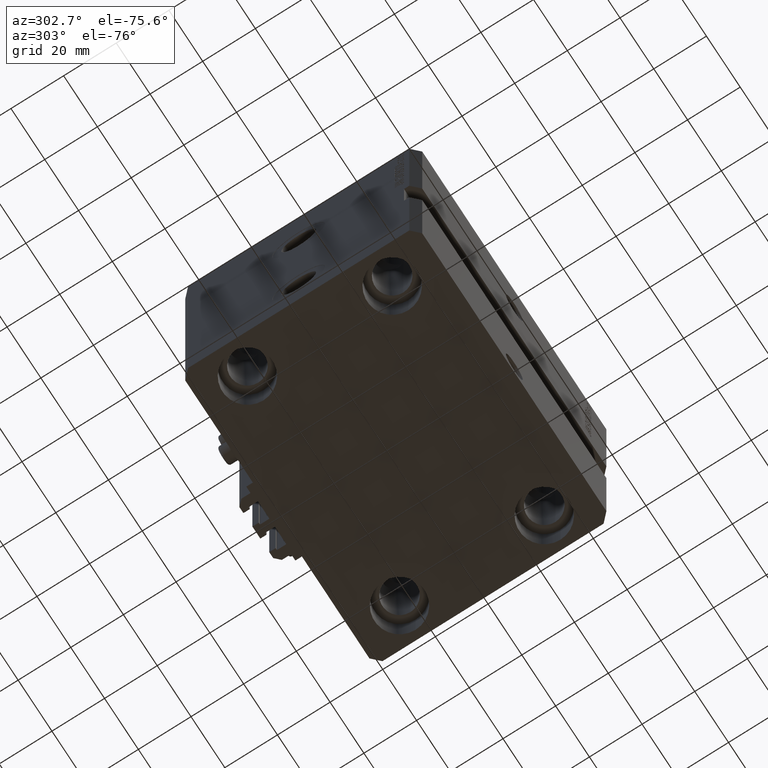
[diagram: clean part render]
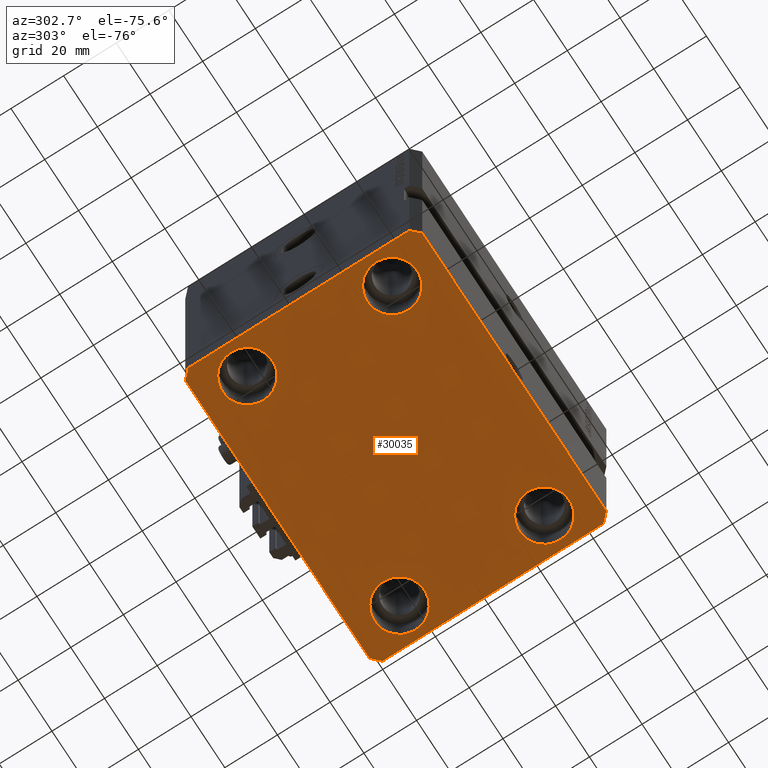
[diagram: same view with one face highlighted and labeled with its STEP entity id]
A machine part, auxiliary view. The second image highlights one B-rep face of the part: STEP entity #30035.
In plain terms, the highlighted planar face has unit normal (0, 0, 1).
Its self-contained STEP definition (entity closure, byte-faithful):
#116 = DIRECTION ( 'NONE',  ( 1.000000000000000000, 0.000000000000000000, -0.000000000000000000 ) ) ;
#152 = VECTOR ( 'NONE', #48277, 999.9999999999998863 ) ;
#198 = CIRCLE ( 'NONE', #24526, 9.500000000000001776 ) ;
#1672 = EDGE_CURVE ( 'NONE', #13714, #35282, #10608, .T. ) ;
#1809 = CIRCLE ( 'NONE', #30255, 9.500000000000001776 ) ;
#1853 = ORIENTED_EDGE ( 'NONE', *, *, #10540, .T. ) ;
#2529 = VECTOR ( 'NONE', #15275, 1000.000000000000114 ) ;
#3179 = CARTESIAN_POINT ( 'NONE',  ( 45.00000000000000000, 27.50000000000001776, -105.0000000000000000 ) ) ;
#3494 = CIRCLE ( 'NONE', #31912, 9.500000000000001776 ) ;
#3511 = LINE ( 'NONE', #26651, #35540 ) ;
#3606 = DIRECTION ( 'NONE',  ( -0.000000000000000000, -0.000000000000000000, 1.000000000000000000 ) ) ;
#3695 = PLANE ( 'NONE',  #30138 ) ;
#3943 = FACE_BOUND ( 'NONE', #33191, .T. ) ;
#3962 = EDGE_CURVE ( 'NONE', #24614, #7372, #30145, .T. ) ;
#4128 = DIRECTION ( 'NONE',  ( -2.478176394252581141E-16, -1.000000000000000000, 0.000000000000000000 ) ) ;
#4370 = EDGE_CURVE ( 'NONE', #12378, #45102, #41951, .T. ) ;
#5740 = AXIS2_PLACEMENT_3D ( 'NONE', #39337, #20018, #12614 ) ;
#5965 = EDGE_CURVE ( 'NONE', #35282, #21574, #29234, .T. ) ;
#6220 = ORIENTED_EDGE ( 'NONE', *, *, #3962, .T. ) ;
#6609 = CARTESIAN_POINT ( 'NONE',  ( 54.50000000000000000, 27.50000000000001776, -105.0000000000000000 ) ) ;
#7128 = EDGE_CURVE ( 'NONE', #48105, #13714, #17233, .T. ) ;
#7372 = VERTEX_POINT ( 'NONE', #23844 ) ;
#7528 = EDGE_CURVE ( 'NONE', #11069, #21249, #1809, .T. ) ;
#8066 = EDGE_CURVE ( 'NONE', #21249, #11069, #28517, .T. ) ;
#8297 = ORIENTED_EDGE ( 'NONE', *, *, #7528, .T. ) ;
#8319 = CARTESIAN_POINT ( 'NONE',  ( 35.50000000000000000, 27.50000000000001776, -105.0000000000000000 ) ) ;
#8425 = EDGE_LOOP ( 'NONE', ( #20188, #18148 ) ) ;
#9191 = CARTESIAN_POINT ( 'NONE',  ( -54.50000000000000000, 27.50000000000000355, -105.0000000000000000 ) ) ;
#9741 = CARTESIAN_POINT ( 'NONE',  ( 57.50000000000055422, 41.99999999999997868, -105.0000000000000000 ) ) ;
#9800 = CARTESIAN_POINT ( 'NONE',  ( -54.50000000000000000, -27.49999999999999645, -105.0000000000000000 ) ) ;
#10540 = EDGE_CURVE ( 'NONE', #7372, #24614, #198, .T. ) ;
#10608 = LINE ( 'NONE', #40605, #27595 ) ;
#11069 = VERTEX_POINT ( 'NONE', #6609 ) ;
#11092 = CARTESIAN_POINT ( 'NONE',  ( -35.50000000000000000, 27.50000000000000355, -105.0000000000000000 ) ) ;
#11198 = CARTESIAN_POINT ( 'NONE',  ( -57.50000000000000711, -42.00000000000000711, -105.0000000000000000 ) ) ;
#11551 = VECTOR ( 'NONE', #20799, 1000.000000000000000 ) ;
#11745 = CARTESIAN_POINT ( 'NONE',  ( -54.50000000000000711, -45.00000000000000000, -105.0000000000000000 ) ) ;
#11825 = DIRECTION ( 'NONE',  ( 1.000000000000000000, 0.000000000000000000, 0.000000000000000000 ) ) ;
#12378 = VERTEX_POINT ( 'NONE', #21836 ) ;
#12614 = DIRECTION ( 'NONE',  ( 1.000000000000000000, 0.000000000000000000, 0.000000000000000000 ) ) ;
#12991 = VERTEX_POINT ( 'NONE', #19178 ) ;
#13714 = VERTEX_POINT ( 'NONE', #24149 ) ;
#14209 = CARTESIAN_POINT ( 'NONE',  ( 57.50000000000055422, 41.99999999999997868, -105.0000000000000000 ) ) ;
#14211 = EDGE_CURVE ( 'NONE', #45102, #48105, #41299, .T. ) ;
#14320 = ORIENTED_EDGE ( 'NONE', *, *, #8066, .T. ) ;
#14873 = DIRECTION ( 'NONE',  ( 1.000000000000000000, 0.000000000000000000, 0.000000000000000000 ) ) ;
#14929 = EDGE_LOOP ( 'NONE', ( #14320, #8297 ) ) ;
#15275 = DIRECTION ( 'NONE',  ( 0.7071067811865491270, -0.7071067811865459074, 0.000000000000000000 ) ) ;
#16112 = FACE_OUTER_BOUND ( 'NONE', #21271, .T. ) ;
#16280 = CIRCLE ( 'NONE', #36575, 9.500000000000001776 ) ;
#17233 = LINE ( 'NONE', #45162, #11551 ) ;
#17499 = DIRECTION ( 'NONE',  ( 6.443258625056715108E-15, 1.000000000000000000, 0.000000000000000000 ) ) ;
#17952 = DIRECTION ( 'NONE',  ( -0.000000000000000000, -0.000000000000000000, 1.000000000000000000 ) ) ;
#18148 = ORIENTED_EDGE ( 'NONE', *, *, #33865, .T. ) ;
#18207 = EDGE_CURVE ( 'NONE', #37142, #44812, #3511, .T. ) ;
#18506 = DIRECTION ( 'NONE',  ( -0.7071067811865483499, -0.7071067811865466846, 0.000000000000000000 ) ) ;
#18757 = ORIENTED_EDGE ( 'NONE', *, *, #37811, .T. ) ;
#18951 = FACE_BOUND ( 'NONE', #8425, .T. ) ;
#18970 = CARTESIAN_POINT ( 'NONE',  ( -54.50000000000000711, -45.00000000000000000, -105.0000000000000000 ) ) ;
#18984 = EDGE_CURVE ( 'NONE', #44812, #12378, #19151, .T. ) ;
#19151 = LINE ( 'NONE', #19397, #25781 ) ;
#19178 = CARTESIAN_POINT ( 'NONE',  ( -35.50000000000000000, -27.49999999999999645, -105.0000000000000000 ) ) ;
#19397 = CARTESIAN_POINT ( 'NONE',  ( -57.49999999999998579, 42.00000000000000711, -105.0000000000000000 ) ) ;
#19445 = FACE_BOUND ( 'NONE', #14929, .T. ) ;
#19601 = AXIS2_PLACEMENT_3D ( 'NONE', #46726, #27426, #42903 ) ;
#20018 = DIRECTION ( 'NONE',  ( -0.000000000000000000, -0.000000000000000000, 1.000000000000000000 ) ) ;
#20188 = ORIENTED_EDGE ( 'NONE', *, *, #29150, .T. ) ;
#20701 = CARTESIAN_POINT ( 'NONE',  ( 54.50000000000058975, 45.00000000000002842, -105.0000000000000000 ) ) ;
#20799 = DIRECTION ( 'NONE',  ( 0.7071067811865483499, 0.7071067811865466846, 0.000000000000000000 ) ) ;
#21103 = ORIENTED_EDGE ( 'NONE', *, *, #1672, .F. ) ;
#21249 = VERTEX_POINT ( 'NONE', #8319 ) ;
#21271 = EDGE_LOOP ( 'NONE', ( #22782, #23604, #21103, #49488, #39024, #50258, #42652, #30093 ) ) ;
#21574 = VERTEX_POINT ( 'NONE', #20701 ) ;
#21836 = CARTESIAN_POINT ( 'NONE',  ( -57.50000000000000711, -42.00000000000000711, -105.0000000000000000 ) ) ;
#22021 = AXIS2_PLACEMENT_3D ( 'NONE', #41576, #30435, #33977 ) ;
#22169 = DIRECTION ( 'NONE',  ( -1.000000000000000000, -2.546383084002639322E-16, 0.000000000000000000 ) ) ;
#22415 = VECTOR ( 'NONE', #49941, 1000.000000000000000 ) ;
#22679 = CARTESIAN_POINT ( 'NONE',  ( 45.00000000000000000, -27.49999999999999645, -105.0000000000000000 ) ) ;
#22782 = ORIENTED_EDGE ( 'NONE', *, *, #31375, .F. ) ;
#23604 = ORIENTED_EDGE ( 'NONE', *, *, #5965, .F. ) ;
#23844 = CARTESIAN_POINT ( 'NONE',  ( 35.50000000000000000, -27.49999999999999645, -105.0000000000000000 ) ) ;
#24149 = CARTESIAN_POINT ( 'NONE',  ( 57.50000000000000711, -41.99999999999998579, -105.0000000000000000 ) ) ;
#24453 = EDGE_LOOP ( 'NONE', ( #1853, #6220 ) ) ;
#24526 = AXIS2_PLACEMENT_3D ( 'NONE', #22679, #3606, #38169 ) ;
#24614 = VERTEX_POINT ( 'NONE', #27170 ) ;
#25781 = VECTOR ( 'NONE', #4128, 1000.000000000000000 ) ;
#26003 = CARTESIAN_POINT ( 'NONE',  ( -54.49999999999999289, 45.00000000000000000, -105.0000000000000000 ) ) ;
#26651 = CARTESIAN_POINT ( 'NONE',  ( -54.49999999999999289, 45.00000000000000000, -105.0000000000000000 ) ) ;
#27103 = CARTESIAN_POINT ( 'NONE',  ( -45.00000000000000000, -27.49999999999999645, -105.0000000000000000 ) ) ;
#27170 = CARTESIAN_POINT ( 'NONE',  ( 54.50000000000000000, -27.49999999999999645, -105.0000000000000000 ) ) ;
#27426 = DIRECTION ( 'NONE',  ( -0.000000000000000000, -0.000000000000000000, 1.000000000000000000 ) ) ;
#27595 = VECTOR ( 'NONE', #17499, 1000.000000000000000 ) ;
#28046 = CARTESIAN_POINT ( 'NONE',  ( 54.50000000000000711, -44.99999999999998579, -105.0000000000000000 ) ) ;
#28517 = CIRCLE ( 'NONE', #39044, 9.500000000000001776 ) ;
#29150 = EDGE_CURVE ( 'NONE', #49820, #32258, #16280, .T. ) ;
#29234 = LINE ( 'NONE', #14209, #152 ) ;
#30035 = ADVANCED_FACE ( 'NONE', ( #3943, #38525, #19445, #18951, #16112 ), #3695, .F. ) ;
#30045 = CARTESIAN_POINT ( 'NONE',  ( 54.50000000000058975, 45.00000000000002842, -105.0000000000000000 ) ) ;
#30093 = ORIENTED_EDGE ( 'NONE', *, *, #18207, .F. ) ;
#30138 = AXIS2_PLACEMENT_3D ( 'NONE', #34957, #31645, #116 ) ;
#30145 = CIRCLE ( 'NONE', #5740, 9.500000000000001776 ) ;
#30255 = AXIS2_PLACEMENT_3D ( 'NONE', #3179, #42318, #14873 ) ;
#30435 = DIRECTION ( 'NONE',  ( -0.000000000000000000, -0.000000000000000000, 1.000000000000000000 ) ) ;
#30581 = DIRECTION ( 'NONE',  ( -0.000000000000000000, -0.000000000000000000, 1.000000000000000000 ) ) ;
#31058 = VERTEX_POINT ( 'NONE', #9800 ) ;
#31375 = EDGE_CURVE ( 'NONE', #21574, #37142, #32664, .T. ) ;
#31645 = DIRECTION ( 'NONE',  ( 0.000000000000000000, 0.000000000000000000, 1.000000000000000000 ) ) ;
#31912 = AXIS2_PLACEMENT_3D ( 'NONE', #27103, #46649, #11825 ) ;
#32258 = VERTEX_POINT ( 'NONE', #11092 ) ;
#32664 = LINE ( 'NONE', #30045, #47975 ) ;
#33191 = EDGE_LOOP ( 'NONE', ( #46334, #18757 ) ) ;
#33473 = DIRECTION ( 'NONE',  ( 1.000000000000000000, 0.000000000000000000, 0.000000000000000000 ) ) ;
#33865 = EDGE_CURVE ( 'NONE', #32258, #49820, #49613, .T. ) ;
#33977 = DIRECTION ( 'NONE',  ( 1.000000000000000000, 0.000000000000000000, 0.000000000000000000 ) ) ;
#34053 = EDGE_CURVE ( 'NONE', #31058, #12991, #38253, .T. ) ;
#34189 = CARTESIAN_POINT ( 'NONE',  ( -57.49999999999998579, 42.00000000000000711, -105.0000000000000000 ) ) ;
#34245 = CARTESIAN_POINT ( 'NONE',  ( 45.00000000000000000, 27.50000000000001776, -105.0000000000000000 ) ) ;
#34957 = CARTESIAN_POINT ( 'NONE',  ( 0.000000000000000000, 0.000000000000000000, -105.0000000000000000 ) ) ;
#35282 = VERTEX_POINT ( 'NONE', #9741 ) ;
#35540 = VECTOR ( 'NONE', #18506, 1000.000000000000000 ) ;
#36575 = AXIS2_PLACEMENT_3D ( 'NONE', #49852, #30581, #42237 ) ;
#37142 = VERTEX_POINT ( 'NONE', #26003 ) ;
#37811 = EDGE_CURVE ( 'NONE', #12991, #31058, #3494, .T. ) ;
#38169 = DIRECTION ( 'NONE',  ( 1.000000000000000000, 0.000000000000000000, 0.000000000000000000 ) ) ;
#38253 = CIRCLE ( 'NONE', #22021, 9.500000000000001776 ) ;
#38525 = FACE_BOUND ( 'NONE', #24453, .T. ) ;
#39024 = ORIENTED_EDGE ( 'NONE', *, *, #14211, .F. ) ;
#39044 = AXIS2_PLACEMENT_3D ( 'NONE', #34245, #17952, #33473 ) ;
#39337 = CARTESIAN_POINT ( 'NONE',  ( 45.00000000000000000, -27.49999999999999645, -105.0000000000000000 ) ) ;
#40605 = CARTESIAN_POINT ( 'NONE',  ( 57.50000000000000711, -41.99999999999998579, -105.0000000000000000 ) ) ;
#41299 = LINE ( 'NONE', #18970, #22415 ) ;
#41576 = CARTESIAN_POINT ( 'NONE',  ( -45.00000000000000000, -27.49999999999999645, -105.0000000000000000 ) ) ;
#41951 = LINE ( 'NONE', #11198, #2529 ) ;
#42237 = DIRECTION ( 'NONE',  ( 1.000000000000000000, 0.000000000000000000, 0.000000000000000000 ) ) ;
#42318 = DIRECTION ( 'NONE',  ( -0.000000000000000000, -0.000000000000000000, 1.000000000000000000 ) ) ;
#42652 = ORIENTED_EDGE ( 'NONE', *, *, #18984, .F. ) ;
#42903 = DIRECTION ( 'NONE',  ( 1.000000000000000000, 0.000000000000000000, 0.000000000000000000 ) ) ;
#44812 = VERTEX_POINT ( 'NONE', #34189 ) ;
#45102 = VERTEX_POINT ( 'NONE', #11745 ) ;
#45162 = CARTESIAN_POINT ( 'NONE',  ( 54.50000000000000711, -44.99999999999998579, -105.0000000000000000 ) ) ;
#46334 = ORIENTED_EDGE ( 'NONE', *, *, #34053, .T. ) ;
#46649 = DIRECTION ( 'NONE',  ( -0.000000000000000000, -0.000000000000000000, 1.000000000000000000 ) ) ;
#46726 = CARTESIAN_POINT ( 'NONE',  ( -45.00000000000000000, 27.50000000000000355, -105.0000000000000000 ) ) ;
#47975 = VECTOR ( 'NONE', #22169, 1000.000000000000000 ) ;
#48105 = VERTEX_POINT ( 'NONE', #28046 ) ;
#48277 = DIRECTION ( 'NONE',  ( -0.7071067811865376918, 0.7071067811865574537, 0.000000000000000000 ) ) ;
#49488 = ORIENTED_EDGE ( 'NONE', *, *, #7128, .F. ) ;
#49613 = CIRCLE ( 'NONE', #19601, 9.500000000000001776 ) ;
#49820 = VERTEX_POINT ( 'NONE', #9191 ) ;
#49852 = CARTESIAN_POINT ( 'NONE',  ( -45.00000000000000000, 27.50000000000000355, -105.0000000000000000 ) ) ;
#49941 = DIRECTION ( 'NONE',  ( 1.000000000000000000, 1.273191542001326317E-16, 0.000000000000000000 ) ) ;
#50258 = ORIENTED_EDGE ( 'NONE', *, *, #4370, .F. ) ;